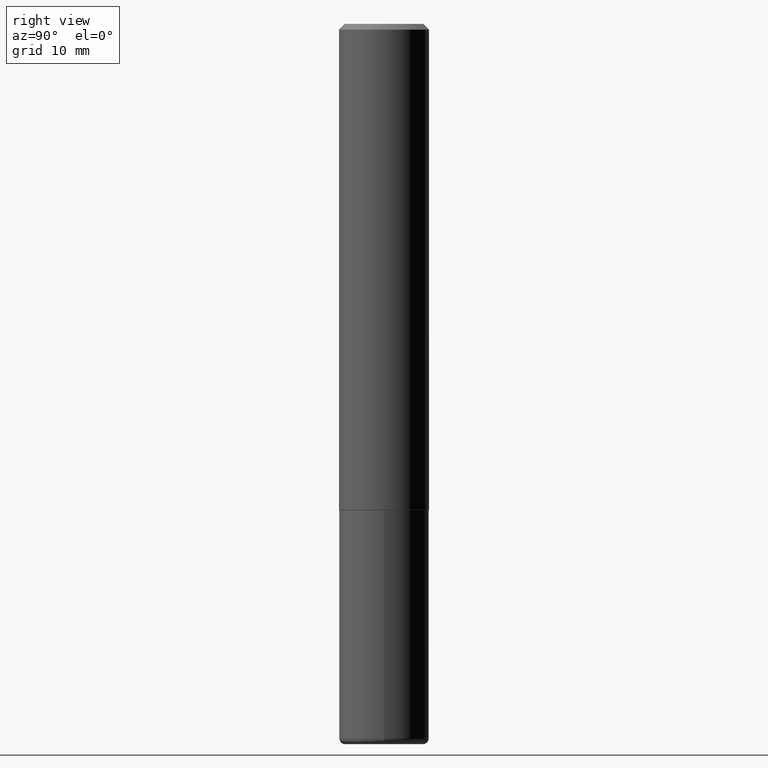
[diagram: clean part render]
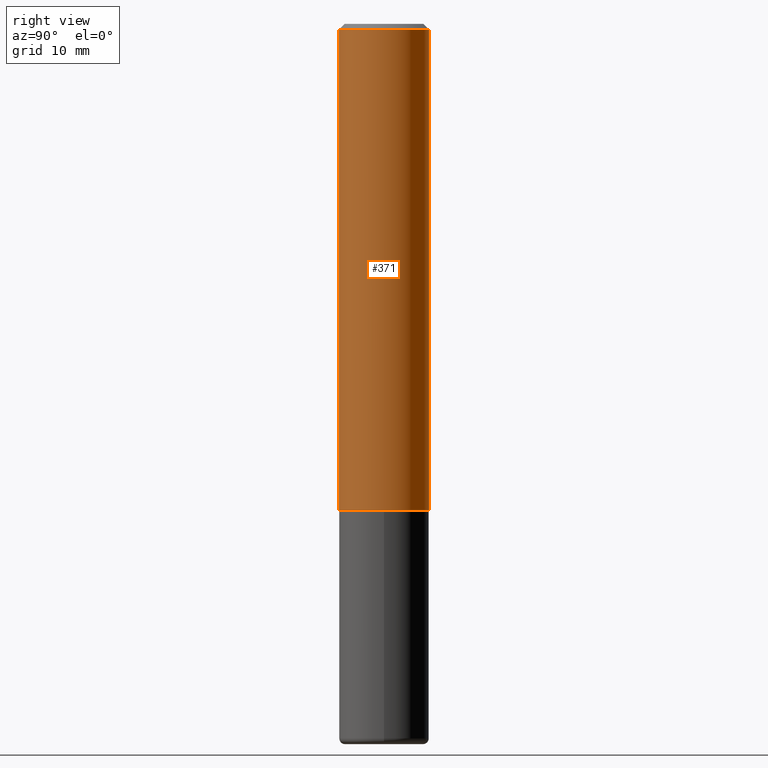
[diagram: same view with one face highlighted and labeled with its STEP entity id]
A machine part, right view. The second image highlights one B-rep face of the part: STEP entity #371.
In plain terms, the highlighted cylindrical surface (partial cylindrical patch) has radius 3.9688 mm, axis along (-0, 0, 1).
Its self-contained STEP definition (entity closure, byte-faithful):
#12 = ORIENTED_EDGE ( 'NONE', *, *, #202, .F. ) ;
#25 = DIRECTION ( 'NONE',  ( -2.445045230849958565E-29, 3.492087922831532098E-15, 1.000000000000000000 ) ) ;
#53 = VERTEX_POINT ( 'NONE', #403 ) ;
#72 = VERTEX_POINT ( 'NONE', #283 ) ;
#76 = CARTESIAN_POINT ( 'NONE',  ( 4.890090461699924977E-31, -6.984175845663074797E-17, -0.02000000000000003511 ) ) ;
#77 = ORIENTED_EDGE ( 'NONE', *, *, #412, .T. ) ;
#105 = CARTESIAN_POINT ( 'NONE',  ( 0.000000000000000000, 0.000000000000000000, 0.000000000000000000 ) ) ;
#137 = CARTESIAN_POINT ( 'NONE',  ( 1.110223024625157132E-15, 0.1562500000000001110, -5.456387379424272725E-16 ) ) ;
#141 = DIRECTION ( 'NONE',  ( -6.982962677686265922E-15, -1.000000000000000000, 3.496765431890251792E-15 ) ) ;
#154 = AXIS2_PLACEMENT_3D ( 'NONE', #272, #398, #141 ) ;
#158 = CARTESIAN_POINT ( 'NONE',  ( -1.091087918388479765E-15, -0.1562500000000001110, 5.456387379424272725E-16 ) ) ;
#169 = CARTESIAN_POINT ( 'NONE',  ( -1.071952812151801215E-15, -0.1562500000000000833, -0.01999999999999948694 ) ) ;
#173 = VECTOR ( 'NONE', #25, 39.37007874015748143 ) ;
#192 = VECTOR ( 'NONE', #197, 39.37007874015748143 ) ;
#196 = ORIENTED_EDGE ( 'NONE', *, *, #393, .T. ) ;
#197 = DIRECTION ( 'NONE',  ( -2.445045230849958565E-29, 3.492087922831532098E-15, 1.000000000000000000 ) ) ;
#201 = DIRECTION ( 'NONE',  ( -2.445045230849958565E-29, 3.492087922831531704E-15, 1.000000000000000000 ) ) ;
#202 = EDGE_CURVE ( 'NONE', #53, #407, #291, .T. ) ;
#205 = LINE ( 'NONE', #137, #192 ) ;
#213 = VERTEX_POINT ( 'NONE', #355 ) ;
#239 = EDGE_LOOP ( 'NONE', ( #77, #196, #399, #12 ) ) ;
#257 = CIRCLE ( 'NONE', #404, 0.1562500000000000000 ) ;
#272 = CARTESIAN_POINT ( 'NONE',  ( 4.124791304443880664E-29, -5.891152325816794336E-15, -1.687000000000000055 ) ) ;
#283 = CARTESIAN_POINT ( 'NONE',  ( 1.110223024625178234E-15, 0.1562499999999943101, -1.687000000000000499 ) ) ;
#291 = LINE ( 'NONE', #158, #173 ) ;
#308 = DIRECTION ( 'NONE',  ( -2.445045230849958565E-29, 3.492087922831531704E-15, 1.000000000000000000 ) ) ;
#318 = AXIS2_PLACEMENT_3D ( 'NONE', #105, #308, #360 ) ;
#343 = CIRCLE ( 'NONE', #154, 0.1562500000000002220 ) ;
#354 = EDGE_CURVE ( 'NONE', #407, #213, #257, .T. ) ;
#355 = CARTESIAN_POINT ( 'NONE',  ( 1.091087918388479568E-15, 0.1562499999999999445, -0.02000000000000057981 ) ) ;
#360 = DIRECTION ( 'NONE',  ( -6.982962677686265922E-15, -1.000000000000000000, 3.492087922831532098E-15 ) ) ;
#371 = ADVANCED_FACE ( 'NONE', ( #392 ), #396, .T. ) ;
#392 = FACE_OUTER_BOUND ( 'NONE', #239, .T. ) ;
#393 = EDGE_CURVE ( 'NONE', #72, #213, #205, .T. ) ;
#394 = DIRECTION ( 'NONE',  ( -6.982962677686265133E-15, -1.000000000000000000, 3.496765431890256920E-15 ) ) ;
#396 = CYLINDRICAL_SURFACE ( 'NONE', #318, 0.1562500000000001110 ) ;
#398 = DIRECTION ( 'NONE',  ( -2.445045230849958565E-29, 3.492087922831531704E-15, 1.000000000000000000 ) ) ;
#399 = ORIENTED_EDGE ( 'NONE', *, *, #354, .F. ) ;
#403 = CARTESIAN_POINT ( 'NONE',  ( -1.091087918388439336E-15, -0.1562500000000061062, -1.686999999999999611 ) ) ;
#404 = AXIS2_PLACEMENT_3D ( 'NONE', #76, #201, #394 ) ;
#407 = VERTEX_POINT ( 'NONE', #169 ) ;
#412 = EDGE_CURVE ( 'NONE', #53, #72, #343, .T. ) ;